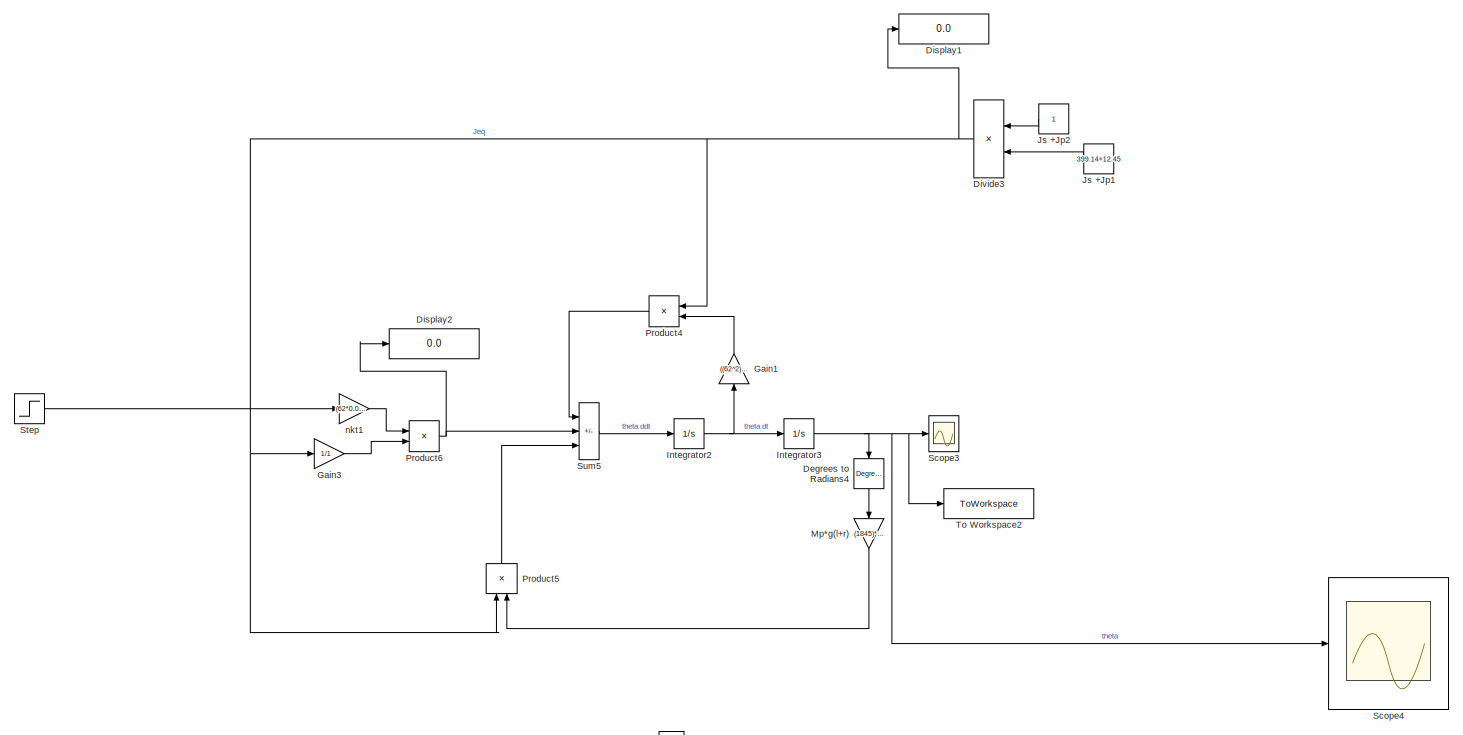
[diagram: root canvas - part 1/2, full width, top band]
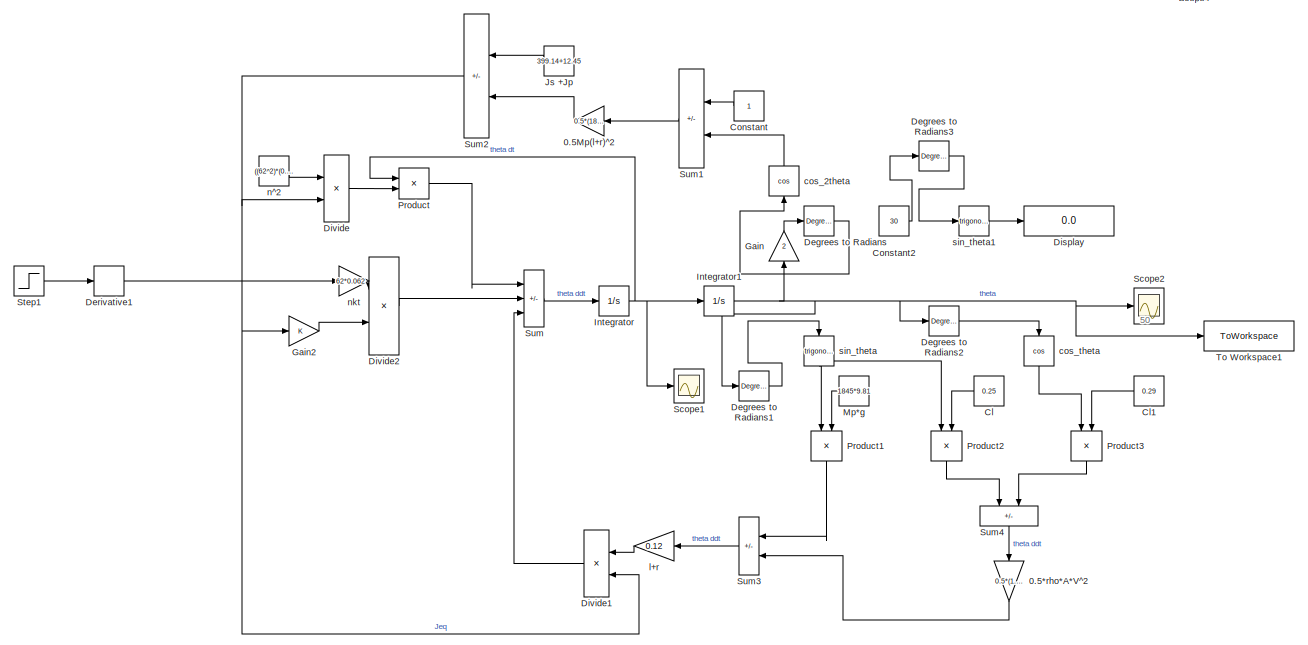
[diagram: root canvas - part 2/2, full width, bottom band]
MODEL slx_ea02f2e453db
KIND model
CONFIG AbsTol = auto
CONFIG EnableMultiTasking = off
CONFIG FixedStep = 0.01
CONFIG MaxStep = auto
CONFIG MinStep = auto
CONFIG RelTol = 1e-3
CONFIG SampleTimeConstraint = Unconstrained
CONFIG SolverName = ode5
CONFIG StartTime = 0.0
CONFIG StopTime = 400
BLOCK [Gain] 0.5*rho*A*V^2
  Gain = 0.5*(1.09)*(1.765*1.048)*(6.5^2)
  NameLocation = left
BLOCK [Gain] 0.5Mp(l+r)^2
  Gain = 0.5*(1845)*(0.12)^2
  NameLocation = top
BLOCK [Constant] Cl
  Value = 0.25
BLOCK [Constant] Cl1
  Value = 0.29
BLOCK [Constant] Constant
BLOCK [Constant] Constant2
  NameLocation = top
  Value = 30
BLOCK [Reference] Degrees to Radians  REF=simulink_extras/Transformations/Degrees to
Radians
  SourceBlock = simulink_extras/Transformations/Degrees to\nRadians
  SourceType = DegreesToRadians
BLOCK [Reference] Degrees to Radians1  REF=simulink_extras/Transformations/Degrees to
Radians
  SourceBlock = simulink_extras/Transformations/Degrees to\nRadians
  SourceType = DegreesToRadians
BLOCK [Reference] Degrees to Radians2  REF=simulink_extras/Transformations/Degrees to
Radians
  SourceBlock = simulink_extras/Transformations/Degrees to\nRadians
  SourceType = DegreesToRadians
BLOCK [Reference] Degrees to Radians3  REF=simulink_extras/Transformations/Degrees to
Radians
  SourceBlock = simulink_extras/Transformations/Degrees to\nRadians
  SourceType = DegreesToRadians
BLOCK [Reference] Degrees to Radians4  REF=simulink_extras/Transformations/Degrees to
Radians
  NameLocation = left
  SourceBlock = simulink_extras/Transformations/Degrees to\nRadians
  SourceType = DegreesToRadians
BLOCK [Derivative] Derivative1
BLOCK [Display] Display
  Decimation = 1
BLOCK [Display] Display1
  Decimation = 1
BLOCK [Display] Display2
  Decimation = 1
BLOCK [Product] Divide
  Inputs = */
BLOCK [Product] Divide1
  Inputs = */
BLOCK [Product] Divide2
  Inputs = */
BLOCK [Product] Divide3
  Inputs = */
BLOCK [Gain] Gain
  Gain = 2
  NameLocation = right
BLOCK [Gain] Gain1
  Gain = ((62^2)*(0.062)*(0.062))/(1) + (8.1449e-6)
  NameLocation = left
BLOCK [Gain] Gain2
BLOCK [Gain] Gain3
  Gain = 1/1
BLOCK [Integrator] Integrator
BLOCK [Integrator] Integrator1
BLOCK [Integrator] Integrator2
BLOCK [Integrator] Integrator3
  NameLocation = top
BLOCK [Constant] Js +Jp
  Value = 399.14+12.45
BLOCK [Constant] Js +Jp1
  Value = 399.14+12.45
BLOCK [Constant] Js +Jp2
BLOCK [Constant] Mp*g
  NameLocation = right
  Value = 1845*9.81
BLOCK [Gain] Mp*g(l+r)
  Gain = (1845)*9.81*(0.12)
  NameLocation = left
BLOCK [Product] Product
BLOCK [Product] Product1
  NameLocation = left
BLOCK [Product] Product2
  NameLocation = left
BLOCK [Product] Product3
  NameLocation = left
BLOCK [Product] Product4
  NameLocation = top
BLOCK [Product] Product5
  NameLocation = left
BLOCK [Product] Product6
BLOCK [Scope] Scope1
  Floating = off
  NumInputPorts = 1
  ScopeSpecificationString = Simulink.scopes.TimeScopeBlockCfg('CurrentConfiguration', extmgr.ConfigurationSet(extmgr.Configuration('Core','General UI',true),extmgr.Configuration('Core','Source UI',true),extmgr.Configuration('Sources','WiredSimulink',true,'DataLoggingVariableName','ScopeData1'),extmgr.Configuration('Visuals','Time Domain',true,'SerializedDisplays',{struct('MinYLimReal','-0.01912','MaxYLimReal','0.02219','YLab...<+1527ch>
BLOCK [Scope] Scope2
  Floating = off
  NumInputPorts = 1
  ScopeSpecificationString = Simulink.scopes.TimeScopeBlockCfg('CurrentConfiguration', extmgr.ConfigurationSet(extmgr.Configuration('Core','General UI',true),extmgr.Configuration('Core','Source UI',true),extmgr.Configuration('Sources','WiredSimulink',true),extmgr.Configuration('Visuals','Time Domain',true,'SerializedDisplays',{struct('MinYLimReal','-0.20632','MaxYLimReal','0.15489','YLabelReal','','MinYLimMag','0.00000','MaxY...<+1485ch>
BLOCK [Scope] Scope3
  Floating = off
  NumInputPorts = 1
  ScopeSpecificationString = Simulink.scopes.TimeScopeBlockCfg('CurrentConfiguration', extmgr.ConfigurationSet(extmgr.Configuration('Core','General UI',true),extmgr.Configuration('Core','Source UI',true),extmgr.Configuration('Sources','WiredSimulink',true,'DataLoggingVariableName','ScopeData1'),extmgr.Configuration('Visuals','Time Domain',true,'SerializedDisplays',{struct('MinYLimReal','-0.55676','MaxYLimReal','5.01084','YLab...<+1524ch>
BLOCK [Scope] Scope4
  Floating = off
  NumInputPorts = 1
  ScopeSpecificationString = Simulink.scopes.TimeScopeBlockCfg('CurrentConfiguration', extmgr.ConfigurationSet(extmgr.Configuration('Core','General UI',true,'FigureColor',[1 1 1]),extmgr.Configuration('Core','Source UI',true),extmgr.Configuration('Sources','WiredSimulink',true,'DataLoggingVariableName','FreeResponse','DataLogging',true),extmgr.Configuration('Visuals','Time Domain',true,'TimeAxisLabels','All','SerializedDispla...<+2083ch>
BLOCK [Step] Step
  After = 24
  SampleTime = 0
  Time = 0
BLOCK [Step] Step1
  After = 24
  SampleTime = 0
  Time = 0.05
BLOCK [Sum] Sum
  IconShape = rectangular
  Inputs = |-+-
BLOCK [Sum] Sum1
  IconShape = rectangular
  Inputs = |+|-
BLOCK [Sum] Sum2
  IconShape = rectangular
  Inputs = |+|-
BLOCK [Sum] Sum3
  IconShape = rectangular
  Inputs = |+-
BLOCK [Sum] Sum4
  IconShape = rectangular
  Inputs = +|-
  NameLocation = right
BLOCK [Sum] Sum5
  IconShape = rectangular
  Inputs = |-+-
BLOCK [ToWorkspace] To Workspace1
  FixptAsFi = on
  MaxDataPoints = inf
  SampleTime = -1
  Save2DSignal = 2-D array (concatenate along first dimension)
  SaveFormat = Timeseries
  VariableName = NonlinearData
BLOCK [ToWorkspace] To Workspace2
  FixptAsFi = on
  MaxDataPoints = inf
  SampleTime = -1
  Save2DSignal = 2-D array (concatenate along first dimension)
  SaveFormat = Timeseries
  VariableName = LinearData
BLOCK [Trigonometry] cos_2theta
  NameLocation = right
  Operator = cos
BLOCK [Trigonometry] cos_theta
  NameLocation = left
  Operator = cos
BLOCK [Gain] l+r
  Gain = 0.12
  NameLocation = top
BLOCK [Constant] n^2
  Value = ((62^2)*(0.062)*(0.062))/(1) + (8.1449e-6)
BLOCK [Gain] nkt
  Gain = 62*0.062
BLOCK [Gain] nkt1
  Gain = (62*0.062)
BLOCK [Trigonometry] sin_theta
  NameLocation = left
BLOCK [Trigonometry] sin_theta1
ANNOTATION (root): 50
LINE 0.5*rho*A*V^2:1 -> Sum3:2
LINE 0.5Mp(l+r)^2:1 -> Sum2:2
LINE Cl1:1 -> Product3:2
LINE Cl:1 -> Product2:2
LINE Constant2:1 -> Degrees to Radians3:1
LINE Constant:1 -> Sum1:1
LINE Degrees to Radians1:1 -> sin_theta:1
LINE Degrees to Radians2:1 -> cos_theta:1
LINE Degrees to Radians3:1 -> sin_theta1:1
LINE Degrees to Radians4:1 -> Mp*g(l+r):1
LINE Degrees to Radians:1 -> cos_2theta:1
LINE Derivative1:1 -> nkt:1
LINE Divide1:1 -> Sum:3
LINE Divide2:1 -> Sum:2
NET Divide3:1 -> Display1:1, Gain3:1, Product4:1, Product5:1
LINE Divide:1 -> Product:2
LINE Gain1:1 -> Product4:2
LINE Gain2:1 -> Divide2:2
LINE Gain3:1 -> Product6:2
LINE Gain:1 -> Degrees to Radians:1
NET Integrator1:1 -> Degrees to Radians1:1, Degrees to Radians2:1, Gain:1, Scope2:1, To Workspace1:1
NET Integrator2:1 -> Gain1:1, Integrator3:1
NET Integrator3:1 -> Degrees to Radians4:1, Scope3:1, Scope4:1, To Workspace2:1
NET Integrator:1 -> Integrator1:1, Product:1, Scope1:1
LINE Js +Jp1:1 -> Divide3:2
LINE Js +Jp2:1 -> Divide3:1
LINE Js +Jp:1 -> Sum2:1
LINE Mp*g(l+r):1 -> Product5:2
LINE Mp*g:1 -> Product1:2
LINE Product1:1 -> Sum3:1
LINE Product2:1 -> Sum4:1
LINE Product3:1 -> Sum4:2
LINE Product4:1 -> Sum5:1
LINE Product5:1 -> Sum5:3
NET Product6:1 -> Display2:1, Sum5:2
LINE Product:1 -> Sum:1
LINE Step1:1 -> Derivative1:1
LINE Step:1 -> nkt1:1
LINE Sum1:1 -> 0.5Mp(l+r)^2:1
NET Sum2:1 -> Divide1:2, Divide:2, Gain2:1
LINE Sum3:1 -> l+r:1
LINE Sum4:1 -> 0.5*rho*A*V^2:1
LINE Sum5:1 -> Integrator2:1
LINE Sum:1 -> Integrator:1
LINE cos_2theta:1 -> Sum1:2
LINE cos_theta:1 -> Product3:1
LINE l+r:1 -> Divide1:1
LINE n^2:1 -> Divide:1
LINE nkt1:1 -> Product6:1
LINE nkt:1 -> Divide2:1
LINE sin_theta1:1 -> Display:1
NET sin_theta:1 -> Product1:1, Product2:1
note: NET lines group one-source signal fan-out (src -> all destinations, sorted); 1:1 wires keep LINE
